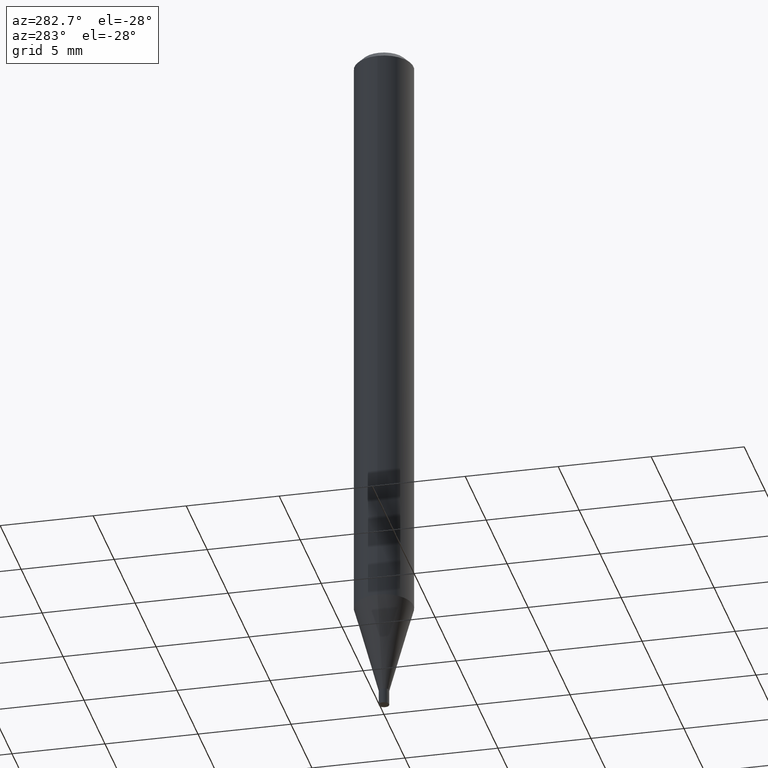
[diagram: clean part render]
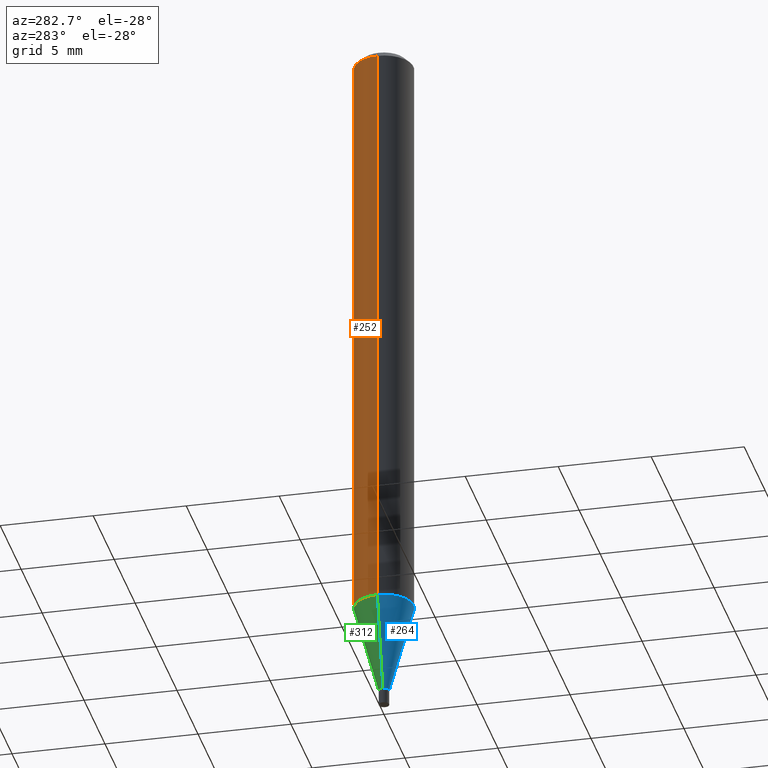
[diagram: same view with three faces highlighted in distinct colors, each labeled with its STEP entity id]
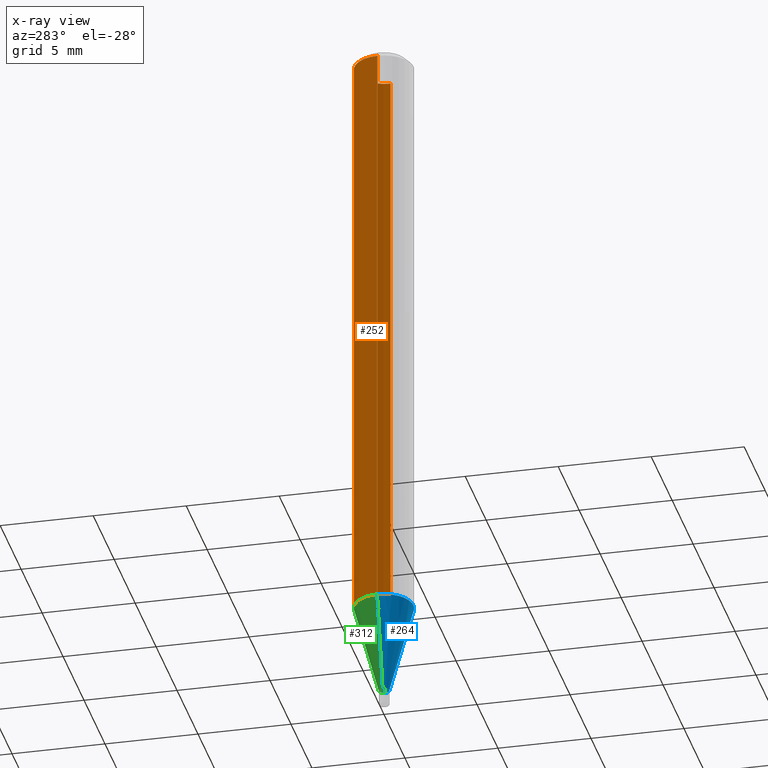
[diagram: x-ray of the same camera — body ghosted, the three highlighted faces saturated]
A machine part, auxiliary view with three faces highlighted in distinct colors.
The next image is the same camera in x-ray (body ghosted, the three faces saturated) — at least one of them is partly hidden behind the body in this view.
Their STEP definitions:

[orange] entity #252 — the highlighted cylindrical surface (edge-blend (fillet) strip) has radius 1.5875 mm, axis along (-0, 0, 1).
#2 = VERTEX_POINT ( 'NONE', #393 ) ;
#4 = CIRCLE ( 'NONE', #318, 0.06250000000000000000 ) ;
#17 = CARTESIAN_POINT ( 'NONE',  ( 3.668203209277705088E-31, -5.237222008264718399E-17, -0.01499999999999999944 ) ) ;
#24 = FACE_OUTER_BOUND ( 'NONE', #275, .T. ) ;
#42 = CIRCLE ( 'NONE', #394, 0.06250000000000000000 ) ;
#57 = CYLINDRICAL_SURFACE ( 'NONE', #188, 0.06250000000000000000 ) ;
#85 = CARTESIAN_POINT ( 'NONE',  ( 0.06250000000000000000, -4.364351673553916694E-16, 3.047610484872459871E-30 ) ) ;
#91 = CARTESIAN_POINT ( 'NONE',  ( -0.06250000000000000000, -4.006849048095413862E-15, -1.274799383410204268 ) ) ;
#112 = DIRECTION ( 'NONE',  ( -2.445468806185136877E-29, 3.491481338843145188E-15, 1.000000000000000000 ) ) ;
#121 = DIRECTION ( 'NONE',  ( -2.445468806185136597E-29, 3.491481338843145583E-15, 1.000000000000000000 ) ) ;
#128 = VERTEX_POINT ( 'NONE', #180 ) ;
#131 = LINE ( 'NONE', #380, #226 ) ;
#150 = EDGE_CURVE ( 'NONE', #466, #128, #405, .T. ) ;
#177 = EDGE_CURVE ( 'NONE', #128, #2, #42, .T. ) ;
#180 = CARTESIAN_POINT ( 'NONE',  ( 0.06250000000000000000, -4.888073874380388472E-16, -0.01499999999999999944 ) ) ;
#185 = DIRECTION ( 'NONE',  ( -2.445468806185136597E-29, 3.491481338843145583E-15, 1.000000000000000000 ) ) ;
#188 = AXIS2_PLACEMENT_3D ( 'NONE', #201, #377, #300 ) ;
#201 = CARTESIAN_POINT ( 'NONE',  ( 0.000000000000000000, 0.000000000000000000, 0.000000000000000000 ) ) ;
#226 = VECTOR ( 'NONE', #263, 39.37007874015748143 ) ;
#239 = ORIENTED_EDGE ( 'NONE', *, *, #150, .F. ) ;
#242 = EDGE_CURVE ( 'NONE', #466, #338, #4, .T. ) ;
#252 = ADVANCED_FACE ( 'NONE', ( #24 ), #57, .T. ) ;
#263 = DIRECTION ( 'NONE',  ( -2.445468806185136877E-29, 3.491481338843145188E-15, 1.000000000000000000 ) ) ;
#266 = CARTESIAN_POINT ( 'NONE',  ( 3.117482126273700423E-29, -4.450938257945477267E-15, -1.274799383410204268 ) ) ;
#275 = EDGE_LOOP ( 'NONE', ( #460, #321, #306, #239 ) ) ;
#292 = VECTOR ( 'NONE', #112, 39.37007874015748143 ) ;
#296 = EDGE_CURVE ( 'NONE', #338, #2, #131, .T. ) ;
#300 = DIRECTION ( 'NONE',  ( 1.000000000000000000, -6.982962677686266711E-15, 4.876176775795935793E-29 ) ) ;
#306 = ORIENTED_EDGE ( 'NONE', *, *, #177, .F. ) ;
#318 = AXIS2_PLACEMENT_3D ( 'NONE', #266, #121, #375 ) ;
#321 = ORIENTED_EDGE ( 'NONE', *, *, #296, .T. ) ;
#338 = VERTEX_POINT ( 'NONE', #91 ) ;
#369 = DIRECTION ( 'NONE',  ( 1.000000000000000000, -6.982962677686266711E-15, 0.000000000000000000 ) ) ;
#375 = DIRECTION ( 'NONE',  ( 1.000000000000000000, -6.982962677686262766E-15, 0.000000000000000000 ) ) ;
#377 = DIRECTION ( 'NONE',  ( -2.445468806185136597E-29, 3.491481338843145583E-15, 1.000000000000000000 ) ) ;
#380 = CARTESIAN_POINT ( 'NONE',  ( -0.06250000000000000000, 4.440892098500626162E-16, -3.074334431409316114E-30 ) ) ;
#385 = CARTESIAN_POINT ( 'NONE',  ( 0.06250000000000000000, -4.887373425300868148E-15, -1.274799383410204268 ) ) ;
#393 = CARTESIAN_POINT ( 'NONE',  ( -0.06250000000000000000, -1.807566029163999360E-15, -0.01499999999999999944 ) ) ;
#394 = AXIS2_PLACEMENT_3D ( 'NONE', #17, #185, #369 ) ;
#405 = LINE ( 'NONE', #85, #292 ) ;
#460 = ORIENTED_EDGE ( 'NONE', *, *, #242, .T. ) ;
#466 = VERTEX_POINT ( 'NONE', #385 ) ;

[blue] entity #264 — the highlighted conical surface has half-angle 15 deg.
#8 = DIRECTION ( 'NONE',  ( -2.445468806185136597E-29, 3.491481338843145583E-15, 1.000000000000000000 ) ) ;
#13 = VECTOR ( 'NONE', #162, 39.37007874015748143 ) ;
#19 = VERTEX_POINT ( 'NONE', #72 ) ;
#32 = VERTEX_POINT ( 'NONE', #69 ) ;
#40 = EDGE_CURVE ( 'NONE', #19, #466, #104, .T. ) ;
#59 = FACE_OUTER_BOUND ( 'NONE', #395, .T. ) ;
#68 = DIRECTION ( 'NONE',  ( 1.000000000000000000, -6.982962677686262766E-15, 0.000000000000000000 ) ) ;
#69 = CARTESIAN_POINT ( 'NONE',  ( -0.01100000000000019539, -4.525346235622348096E-15, -1.467000000000000304 ) ) ;
#72 = CARTESIAN_POINT ( 'NONE',  ( 0.01100000000000019539, -5.198815713537445887E-15, -1.467000000000000304 ) ) ;
#88 = DIRECTION ( 'NONE',  ( -2.445468806185136597E-29, 3.491481338843145583E-15, 1.000000000000000000 ) ) ;
#91 = CARTESIAN_POINT ( 'NONE',  ( -0.06250000000000000000, -4.006849048095413862E-15, -1.274799383410204268 ) ) ;
#95 = AXIS2_PLACEMENT_3D ( 'NONE', #133, #8, #68 ) ;
#104 = LINE ( 'NONE', #209, #303 ) ;
#123 = LINE ( 'NONE', #340, #13 ) ;
#127 = CARTESIAN_POINT ( 'NONE',  ( 3.587502738673595692E-29, -5.122003124082895786E-15, -1.467000000000000304 ) ) ;
#133 = CARTESIAN_POINT ( 'NONE',  ( 3.117482126273700423E-29, -4.450938257945477267E-15, -1.274799383410204268 ) ) ;
#162 = DIRECTION ( 'NONE',  ( -0.2588190451025214611, 5.211531920934550253E-15, 0.9659258262890679791 ) ) ;
#172 = ORIENTED_EDGE ( 'NONE', *, *, #331, .T. ) ;
#173 = CIRCLE ( 'NONE', #95, 0.06250000000000000000 ) ;
#194 = DIRECTION ( 'NONE',  ( 1.000000000000000000, -6.982962677686296687E-15, 0.000000000000000000 ) ) ;
#195 = ORIENTED_EDGE ( 'NONE', *, *, #259, .F. ) ;
#202 = ORIENTED_EDGE ( 'NONE', *, *, #409, .F. ) ;
#203 = CARTESIAN_POINT ( 'NONE',  ( 3.587502738673595692E-29, -5.122003124082895786E-15, -1.467000000000000304 ) ) ;
#209 = CARTESIAN_POINT ( 'NONE',  ( 0.01100000000000019539, -5.198815713537445887E-15, -1.467000000000000304 ) ) ;
#249 = AXIS2_PLACEMENT_3D ( 'NONE', #203, #418, #194 ) ;
#259 = EDGE_CURVE ( 'NONE', #32, #338, #123, .T. ) ;
#264 = ADVANCED_FACE ( 'NONE', ( #59 ), #457, .T. ) ;
#302 = ORIENTED_EDGE ( 'NONE', *, *, #40, .T. ) ;
#303 = VECTOR ( 'NONE', #353, 39.37007874015748143 ) ;
#331 = EDGE_CURVE ( 'NONE', #32, #19, #401, .T. ) ;
#338 = VERTEX_POINT ( 'NONE', #91 ) ;
#340 = CARTESIAN_POINT ( 'NONE',  ( -0.01100000000000019539, -5.043843423149283118E-15, -1.467000000000000304 ) ) ;
#350 = AXIS2_PLACEMENT_3D ( 'NONE', #127, #88, #448 ) ;
#353 = DIRECTION ( 'NONE',  ( 0.2588190451025214611, 1.565188264969620982E-15, 0.9659258262890679791 ) ) ;
#385 = CARTESIAN_POINT ( 'NONE',  ( 0.06250000000000000000, -4.887373425300868148E-15, -1.274799383410204268 ) ) ;
#395 = EDGE_LOOP ( 'NONE', ( #195, #172, #302, #202 ) ) ;
#401 = CIRCLE ( 'NONE', #350, 0.01100000000000019539 ) ;
#409 = EDGE_CURVE ( 'NONE', #338, #466, #173, .T. ) ;
#418 = DIRECTION ( 'NONE',  ( -2.445468806185136597E-29, 3.491481338843145583E-15, 1.000000000000000000 ) ) ;
#448 = DIRECTION ( 'NONE',  ( 1.000000000000000000, -6.982962677686296687E-15, 0.000000000000000000 ) ) ;
#457 = CONICAL_SURFACE ( 'NONE', #249, 0.01100000000000019539, 0.2617993877991501850 ) ;
#466 = VERTEX_POINT ( 'NONE', #385 ) ;

[green] entity #312 — the highlighted conical surface has half-angle 15 deg.
#4 = CIRCLE ( 'NONE', #318, 0.06250000000000000000 ) ;
#13 = VECTOR ( 'NONE', #162, 39.37007874015748143 ) ;
#19 = VERTEX_POINT ( 'NONE', #72 ) ;
#26 = DIRECTION ( 'NONE',  ( 1.000000000000000000, -6.982962677686296687E-15, 0.000000000000000000 ) ) ;
#32 = VERTEX_POINT ( 'NONE', #69 ) ;
#40 = EDGE_CURVE ( 'NONE', #19, #466, #104, .T. ) ;
#48 = CARTESIAN_POINT ( 'NONE',  ( 3.587502738673595692E-29, -5.122003124082895786E-15, -1.467000000000000304 ) ) ;
#58 = EDGE_LOOP ( 'NONE', ( #106, #212, #164, #323 ) ) ;
#69 = CARTESIAN_POINT ( 'NONE',  ( -0.01100000000000019539, -4.525346235622348096E-15, -1.467000000000000304 ) ) ;
#72 = CARTESIAN_POINT ( 'NONE',  ( 0.01100000000000019539, -5.198815713537445887E-15, -1.467000000000000304 ) ) ;
#89 = EDGE_CURVE ( 'NONE', #19, #32, #103, .T. ) ;
#91 = CARTESIAN_POINT ( 'NONE',  ( -0.06250000000000000000, -4.006849048095413862E-15, -1.274799383410204268 ) ) ;
#103 = CIRCLE ( 'NONE', #465, 0.01100000000000019539 ) ;
#104 = LINE ( 'NONE', #209, #303 ) ;
#106 = ORIENTED_EDGE ( 'NONE', *, *, #89, .T. ) ;
#120 = DIRECTION ( 'NONE',  ( 1.000000000000000000, -6.982962677686296687E-15, 0.000000000000000000 ) ) ;
#121 = DIRECTION ( 'NONE',  ( -2.445468806185136597E-29, 3.491481338843145583E-15, 1.000000000000000000 ) ) ;
#123 = LINE ( 'NONE', #340, #13 ) ;
#157 = DIRECTION ( 'NONE',  ( -2.445468806185136597E-29, 3.491481338843145583E-15, 1.000000000000000000 ) ) ;
#162 = DIRECTION ( 'NONE',  ( -0.2588190451025214611, 5.211531920934550253E-15, 0.9659258262890679791 ) ) ;
#164 = ORIENTED_EDGE ( 'NONE', *, *, #242, .F. ) ;
#209 = CARTESIAN_POINT ( 'NONE',  ( 0.01100000000000019539, -5.198815713537445887E-15, -1.467000000000000304 ) ) ;
#212 = ORIENTED_EDGE ( 'NONE', *, *, #259, .T. ) ;
#238 = CARTESIAN_POINT ( 'NONE',  ( 3.587502738673595692E-29, -5.122003124082895786E-15, -1.467000000000000304 ) ) ;
#242 = EDGE_CURVE ( 'NONE', #466, #338, #4, .T. ) ;
#259 = EDGE_CURVE ( 'NONE', #32, #338, #123, .T. ) ;
#261 = DIRECTION ( 'NONE',  ( -2.445468806185136597E-29, 3.491481338843145583E-15, 1.000000000000000000 ) ) ;
#266 = CARTESIAN_POINT ( 'NONE',  ( 3.117482126273700423E-29, -4.450938257945477267E-15, -1.274799383410204268 ) ) ;
#303 = VECTOR ( 'NONE', #353, 39.37007874015748143 ) ;
#309 = FACE_OUTER_BOUND ( 'NONE', #58, .T. ) ;
#312 = ADVANCED_FACE ( 'NONE', ( #309 ), #447, .T. ) ;
#318 = AXIS2_PLACEMENT_3D ( 'NONE', #266, #121, #375 ) ;
#323 = ORIENTED_EDGE ( 'NONE', *, *, #40, .F. ) ;
#338 = VERTEX_POINT ( 'NONE', #91 ) ;
#340 = CARTESIAN_POINT ( 'NONE',  ( -0.01100000000000019539, -5.043843423149283118E-15, -1.467000000000000304 ) ) ;
#353 = DIRECTION ( 'NONE',  ( 0.2588190451025214611, 1.565188264969620982E-15, 0.9659258262890679791 ) ) ;
#375 = DIRECTION ( 'NONE',  ( 1.000000000000000000, -6.982962677686262766E-15, 0.000000000000000000 ) ) ;
#385 = CARTESIAN_POINT ( 'NONE',  ( 0.06250000000000000000, -4.887373425300868148E-15, -1.274799383410204268 ) ) ;
#431 = AXIS2_PLACEMENT_3D ( 'NONE', #238, #261, #26 ) ;
#447 = CONICAL_SURFACE ( 'NONE', #431, 0.01100000000000019539, 0.2617993877991501850 ) ;
#465 = AXIS2_PLACEMENT_3D ( 'NONE', #48, #157, #120 ) ;
#466 = VERTEX_POINT ( 'NONE', #385 ) ;